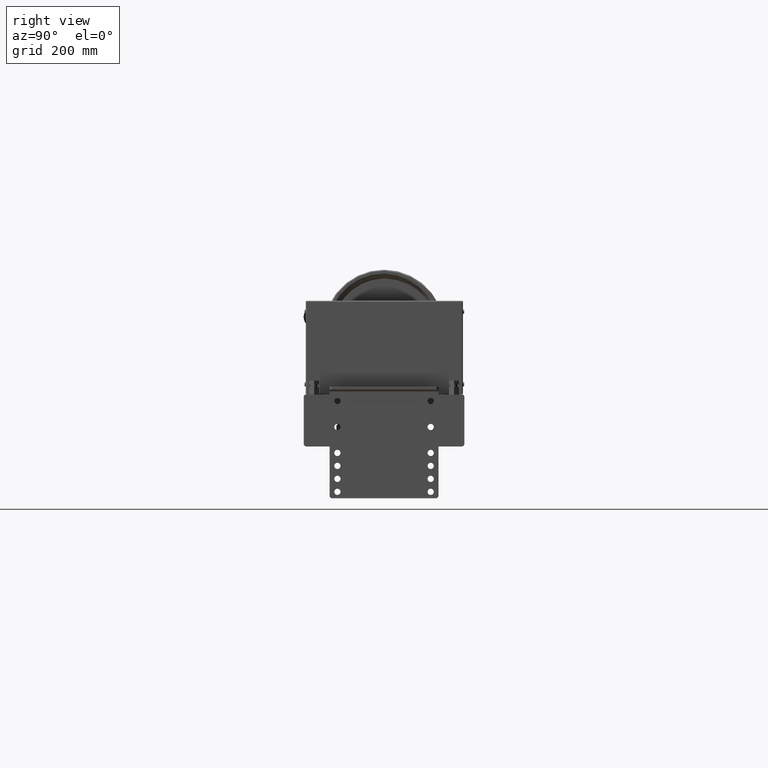
[diagram: clean part render]
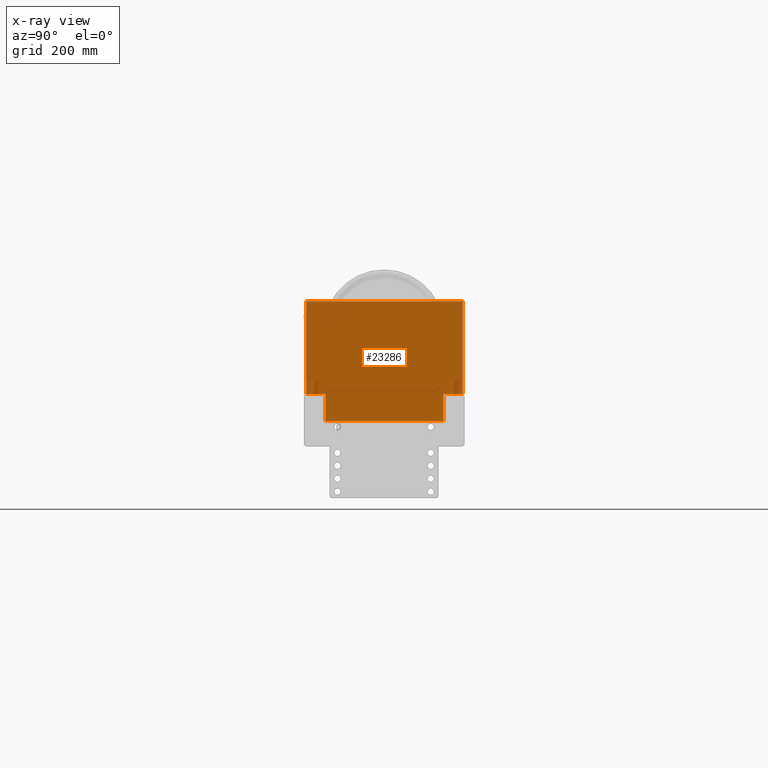
[diagram: x-ray — body ghosted, one internal face saturated and labeled with its STEP entity id]
A machine part, right view, then the same camera in x-ray: the body is ghosted and one INTERNAL B-rep face — a face not visible from any outside direction — is saturated and labeled: STEP entity #23286.
In plain terms, the highlighted planar face has unit normal (1, 0, -0).
Its self-contained STEP definition (entity closure, byte-faithful):
#22016=CARTESIAN_POINT('',(-54.0,-95.500000000000114,0.500000000000000));
#22017=VERTEX_POINT('',#22016);
#22024=CARTESIAN_POINT('',(-56.0,-93.500000000000114,0.500000000000000));
#22025=VERTEX_POINT('',#22024);
#22026=CARTESIAN_POINT('',(-56.0,-95.500000000000114,0.500000000000000));
#22027=DIRECTION('',(0.0,0.0,1.000000000000000));
#22028=DIRECTION('',(0.707106781186548,0.707106781186548,0.0));
#22029=AXIS2_PLACEMENT_3D('',#22026,#22027,#22028);
#22030=CIRCLE('',#22029,2.000000000000000);
#22031=EDGE_CURVE('',#22017,#22025,#22030,.T.);
#22081=CARTESIAN_POINT('',(-54.0,-145.500000000000110,0.500000000000000));
#22082=VERTEX_POINT('',#22081);
#22089=CARTESIAN_POINT('',(-54.0,-145.500000000000110,0.500000000000000));
#22090=DIRECTION('',(0.0,1.0,0.0));
#22091=VECTOR('',#22090,50.0);
#22092=LINE('',#22089,#22091);
#22093=EDGE_CURVE('',#22082,#22017,#22092,.T.);
#22146=CARTESIAN_POINT('',(-90.500000000000000,-93.500000000000114,0.500000000000000));
#22147=VERTEX_POINT('',#22146);
#22148=CARTESIAN_POINT('',(-56.0,-93.500000000000114,0.500000000000000));
#22149=DIRECTION('',(-1.0,0.0,0.0));
#22150=VECTOR('',#22149,34.500000000000000);
#22151=LINE('',#22148,#22150);
#22152=EDGE_CURVE('',#22025,#22147,#22151,.T.);
#22321=CARTESIAN_POINT('',(-90.500000000000000,85.499999999999886,0.500000000000000));
#22322=VERTEX_POINT('',#22321);
#22449=CARTESIAN_POINT('',(210.500000000000110,85.499999999999886,0.500000000000000));
#22450=VERTEX_POINT('',#22449);
#22600=CARTESIAN_POINT('',(210.500000000000000,-93.500000000000114,0.500000000000000));
#22601=VERTEX_POINT('',#22600);
#22608=CARTESIAN_POINT('',(176.0,-93.500000000000114,0.500000000000000));
#22609=VERTEX_POINT('',#22608);
#22610=CARTESIAN_POINT('',(210.500000000000000,-93.500000000000114,0.500000000000000));
#22611=DIRECTION('',(-1.0,0.0,0.0));
#22612=VECTOR('',#22611,34.500000000000000);
#22613=LINE('',#22610,#22612);
#22614=EDGE_CURVE('',#22601,#22609,#22613,.T.);
#22658=CARTESIAN_POINT('',(174.0,-95.500000000000114,0.500000000000000));
#22659=VERTEX_POINT('',#22658);
#22660=CARTESIAN_POINT('',(176.0,-95.500000000000114,0.500000000000000));
#22661=DIRECTION('',(0.0,0.0,1.000000000000000));
#22662=DIRECTION('',(-0.707106781186548,0.707106781186548,0.0));
#22663=AXIS2_PLACEMENT_3D('',#22660,#22661,#22662);
#22664=CIRCLE('',#22663,2.000000000000000);
#22665=EDGE_CURVE('',#22609,#22659,#22664,.T.);
#22755=CARTESIAN_POINT('',(174.0,-145.500000000000110,0.500000000000000));
#22756=VERTEX_POINT('',#22755);
#22763=CARTESIAN_POINT('',(174.0,-145.500000000000110,0.500000000000000));
#22764=DIRECTION('',(-1.0,0.0,0.0));
#22765=VECTOR('',#22764,228.0);
#22766=LINE('',#22763,#22765);
#22767=EDGE_CURVE('',#22756,#22082,#22766,.T.);
#23111=CARTESIAN_POINT('',(-90.500000000000000,85.499999999999886,0.500000000000000));
#23112=DIRECTION('',(1.0,0.0,0.0));
#23113=VECTOR('',#23112,301.000000000000110);
#23114=LINE('',#23111,#23113);
#23115=EDGE_CURVE('',#22322,#22450,#23114,.T.);
#23176=CARTESIAN_POINT('',(210.500000000000110,85.499999999999886,0.500000000000000));
#23177=DIRECTION('',(0.0,-1.0,0.0));
#23178=VECTOR('',#23177,179.0);
#23179=LINE('',#23176,#23178);
#23180=EDGE_CURVE('',#22450,#22601,#23179,.T.);
#23213=CARTESIAN_POINT('',(-90.500000000000000,-93.500000000000114,0.500000000000000));
#23214=DIRECTION('',(0.0,1.0,0.0));
#23215=VECTOR('',#23214,179.0);
#23216=LINE('',#23213,#23215);
#23217=EDGE_CURVE('',#22147,#22322,#23216,.T.);
#23255=CARTESIAN_POINT('',(174.0,-95.500000000000114,0.500000000000000));
#23256=DIRECTION('',(0.0,-1.0,0.0));
#23257=VECTOR('',#23256,50.0);
#23258=LINE('',#23255,#23257);
#23259=EDGE_CURVE('',#22659,#22756,#23258,.T.);
#23269=CARTESIAN_POINT('',(60.000000000000021,-26.432330827067759,0.500000000000000));
#23270=DIRECTION('',(0.0,0.0,1.0));
#23271=DIRECTION('',(1.0,0.0,0.0));
#23272=AXIS2_PLACEMENT_3D('',#23269,#23270,#23271);
#23273=PLANE('',#23272);
#23274=ORIENTED_EDGE('',*,*,#23180,.F.);
#23275=ORIENTED_EDGE('',*,*,#23115,.F.);
#23276=ORIENTED_EDGE('',*,*,#23217,.F.);
#23277=ORIENTED_EDGE('',*,*,#22152,.F.);
#23278=ORIENTED_EDGE('',*,*,#22031,.F.);
#23279=ORIENTED_EDGE('',*,*,#22093,.F.);
#23280=ORIENTED_EDGE('',*,*,#22767,.F.);
#23281=ORIENTED_EDGE('',*,*,#23259,.F.);
#23282=ORIENTED_EDGE('',*,*,#22665,.F.);
#23283=ORIENTED_EDGE('',*,*,#22614,.F.);
#23284=EDGE_LOOP('',(#23274,#23275,#23276,#23277,#23278,#23279,#23280,#23281,#23282,#23283));
#23285=FACE_OUTER_BOUND('',#23284,.T.);
#23286=ADVANCED_FACE('',(#23285),#23273,.T.);